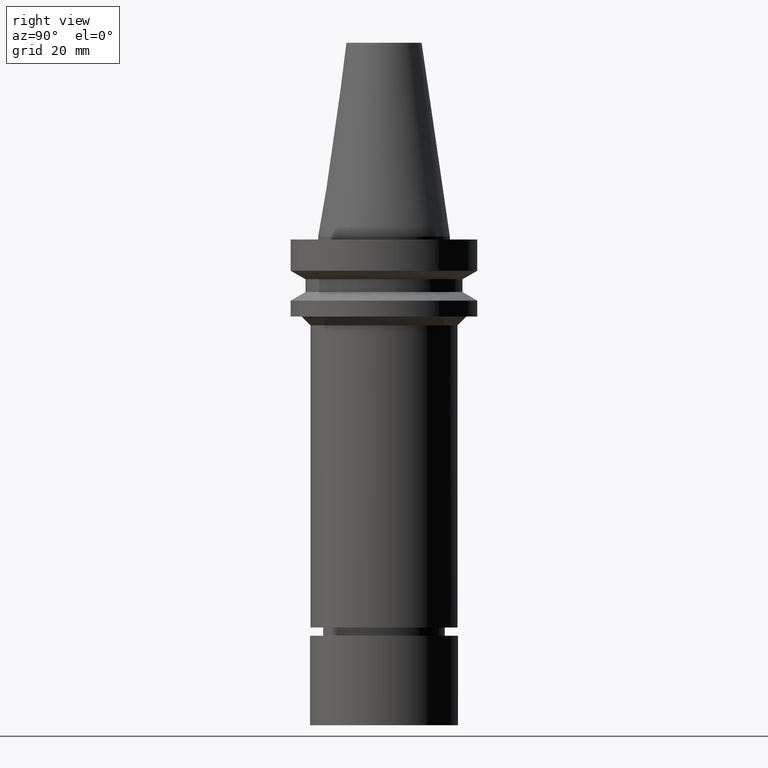
[diagram: clean part render]
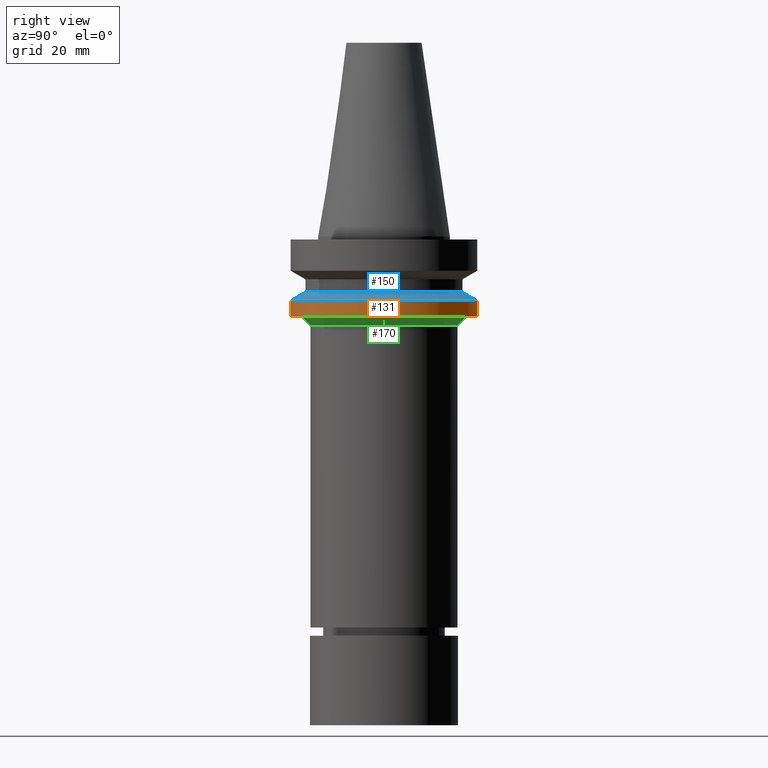
[diagram: same view with three faces highlighted in distinct colors, each labeled with its STEP entity id]
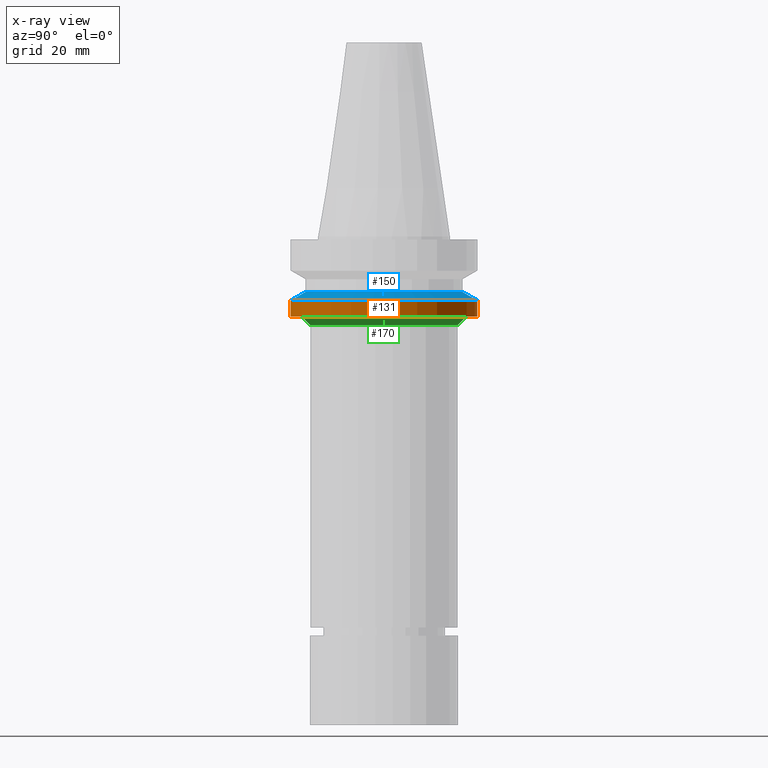
[diagram: x-ray of the same camera — body ghosted, the three highlighted faces saturated]
A machine part, right view with three faces highlighted in distinct colors.
The next image is the same camera in x-ray (body ghosted, the three faces saturated) — at least one of them is partly hidden behind the body in this view.
Their STEP definitions:

[orange] entity #131 — the highlighted cylindrical surface (bore or boss wall) has radius 31.5 mm, axis along (0, 0, -1).
#123=EDGE_CURVE('Unnamed[1]',#273,#273,#274,.T.);
#131=ADVANCED_FACE('Unnamed[1]',(#284,#285),#286,.T.);
#172=EDGE_CURVE('Unnamed[1]',#349,#349,#350,.T.);
#273=VERTEX_POINT('',#467);
#274=CIRCLE('',#468,31.5000000000003);
#284=FACE_BOUND('',#481,.T.);
#285=FACE_BOUND('',#482,.T.);
#286=CYLINDRICAL_SURFACE('',#483,31.5000000000005);
#349=VERTEX_POINT('',#561);
#350=CIRCLE('',#562,31.5000000000006);
#467=CARTESIAN_POINT('',(1.65328282719222E-015,31.5000000000004,-27.0001575694036));
#468=AXIS2_PLACEMENT_3D('',#659,#660,#661);
#481=EDGE_LOOP('',(#671));
#482=EDGE_LOOP('',(#672));
#483=AXIS2_PLACEMENT_3D('',#673,#674,#675);
#561=CARTESIAN_POINT('',(1.32473071268174E-015,31.5000000000007,-21.6344943473346));
#562=AXIS2_PLACEMENT_3D('',#743,#744,#745);
#659=CARTESIAN_POINT('',(1.65328282719222E-015,7.78981316636272E-014,-27.0001575694036));
#660=DIRECTION('',(6.12323399573677E-017,7.81354581145529E-018,-1.0));
#661=DIRECTION('',(-5.30559442416852E-033,1.0,7.81354581145529E-018));
#671=ORIENTED_EDGE('',*,*,#123,.F.);
#672=ORIENTED_EDGE('',*,*,#172,.T.);
#673=CARTESIAN_POINT('',(1.48900676993698E-015,7.787716923593E-014,-24.3173259583691));
#674=DIRECTION('',(6.12323399573677E-017,7.81354581145529E-018,-1.0));
#675=DIRECTION('',(-5.30559442416852E-033,1.0,7.8135458114553E-018));
#743=CARTESIAN_POINT('',(1.32473071268174E-015,7.78562068082328E-014,-21.6344943473347));
#744=DIRECTION('',(6.12323399573677E-017,7.81354581145528E-018,-1.0));
#745=DIRECTION('',(-5.30559442416852E-033,1.0,7.81354581145528E-018));

[blue] entity #150 — the highlighted conical surface has half-angle 60 deg.
#141=EDGE_CURVE('Unnamed[1]',#301,#301,#302,.T.);
#150=ADVANCED_FACE('Unnamed[1]',(#314,#315),#316,.T.);
#172=EDGE_CURVE('Unnamed[1]',#349,#349,#350,.T.);
#301=VERTEX_POINT('',#502);
#302=CIRCLE('',#503,26.5);
#314=FACE_BOUND('',#519,.T.);
#315=FACE_BOUND('',#520,.T.);
#316=CONICAL_SURFACE('',#521,29.0000000000003,1.04719755119651);
#349=VERTEX_POINT('',#561);
#350=CIRCLE('',#562,31.5000000000006);
#502=CARTESIAN_POINT('',(1.1479681728942E-015,26.5,-18.7477430013855));
#503=AXIS2_PLACEMENT_3D('',#691,#692,#693);
#519=EDGE_LOOP('',(#704));
#520=EDGE_LOOP('',(#705));
#521=AXIS2_PLACEMENT_3D('',#706,#707,#708);
#561=CARTESIAN_POINT('',(1.32473071268174E-015,31.5000000000007,-21.6344943473346));
#562=AXIS2_PLACEMENT_3D('',#743,#744,#745);
#691=CARTESIAN_POINT('',(1.1479681728942E-015,7.78336510443449E-014,-18.7477430013855));
#692=DIRECTION('',(6.12323399573677E-017,7.81354581145528E-018,-1.0));
#693=DIRECTION('',(-5.30559442416852E-033,1.0,7.81354581145528E-018));
#704=ORIENTED_EDGE('',*,*,#172,.F.);
#705=ORIENTED_EDGE('',*,*,#141,.T.);
#706=CARTESIAN_POINT('',(1.23634944278797E-015,7.78449289262888E-014,-20.1911186743601));
#707=DIRECTION('',(6.12323399573677E-017,7.81354581145529E-018,-1.0));
#708=DIRECTION('',(-5.30559442416852E-033,1.0,7.81354581145529E-018));
#743=CARTESIAN_POINT('',(1.32473071268174E-015,7.78562068082328E-014,-21.6344943473347));
#744=DIRECTION('',(6.12323399573677E-017,7.81354581145528E-018,-1.0));
#745=DIRECTION('',(-5.30559442416852E-033,1.0,7.81354581145528E-018));

[green] entity #170 — the highlighted conical surface has half-angle 45 deg.
#92=EDGE_CURVE('Unnamed[1]',#227,#227,#228,.T.);
#113=EDGE_CURVE('Unnamed[1]',#259,#259,#260,.T.);
#170=ADVANCED_FACE('Unnamed[1]',(#345,#346),#347,.T.);
#227=VERTEX_POINT('',#410);
#228=CIRCLE('',#411,24.7999999999997);
#259=VERTEX_POINT('',#450);
#260=CIRCLE('',#451,27.8000000024396);
#345=FACE_BOUND('',#556,.T.);
#346=FACE_BOUND('',#557,.T.);
#347=CONICAL_SURFACE('',#558,26.3000000012197,0.785398163374261);
#410=CARTESIAN_POINT('',(1.83697045278272E-015,24.7999999999998,-30.0000041491422));
#411=AXIS2_PLACEMENT_3D('',#609,#610,#611);
#450=CARTESIAN_POINT('',(1.65327343275269E-015,27.8000000024397,-27.0000041465632));
#451=AXIS2_PLACEMENT_3D('',#646,#647,#648);
#556=EDGE_LOOP('',(#738));
#557=EDGE_LOOP('',(#739));
#558=AXIS2_PLACEMENT_3D('',#740,#741,#742);
#609=CARTESIAN_POINT('',(1.83697045278272E-015,7.79215711023054E-014,-30.0000041491422));
#610=DIRECTION('',(6.12323399573677E-017,7.8135458114553E-018,-1.0));
#611=DIRECTION('',(-5.30559442416852E-033,1.0,7.81354581145529E-018));
#646=CARTESIAN_POINT('',(1.6532734327527E-015,7.78981304648508E-014,-27.0000041465632));
#647=DIRECTION('',(6.12323399573677E-017,7.81354581145528E-018,-1.0));
#648=DIRECTION('',(-5.30559442416852E-033,1.0,7.81354581145528E-018));
#738=ORIENTED_EDGE('',*,*,#92,.F.);
#739=ORIENTED_EDGE('',*,*,#113,.T.);
#740=CARTESIAN_POINT('',(1.74512194276771E-015,7.79098507835781E-014,-28.5000041478527));
#741=DIRECTION('',(-6.12323399573677E-017,-7.81354581145528E-018,1.0));
#742=DIRECTION('',(-5.30559442416852E-033,1.0,7.81354581145528E-018));